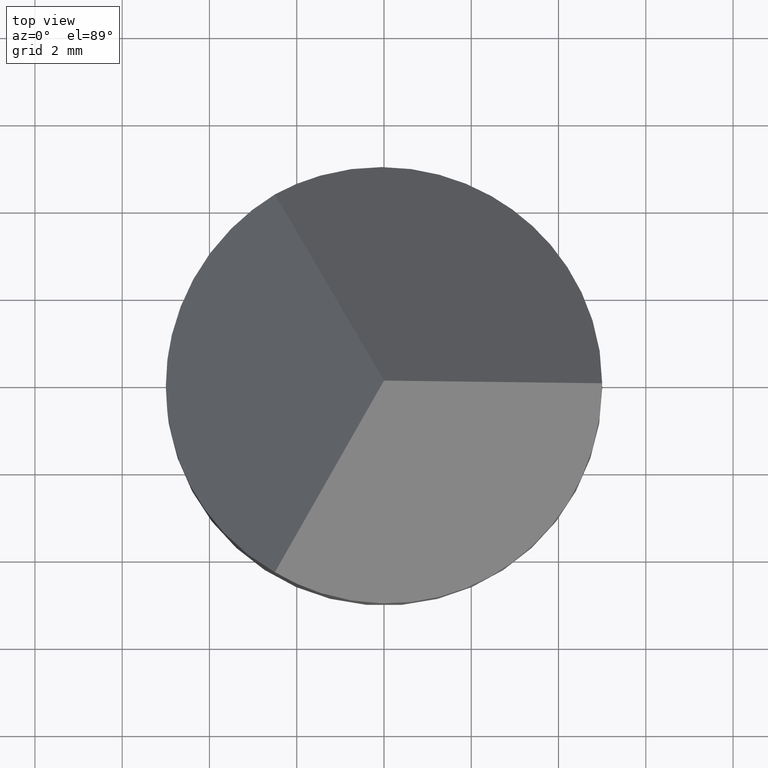
[diagram: clean part render]
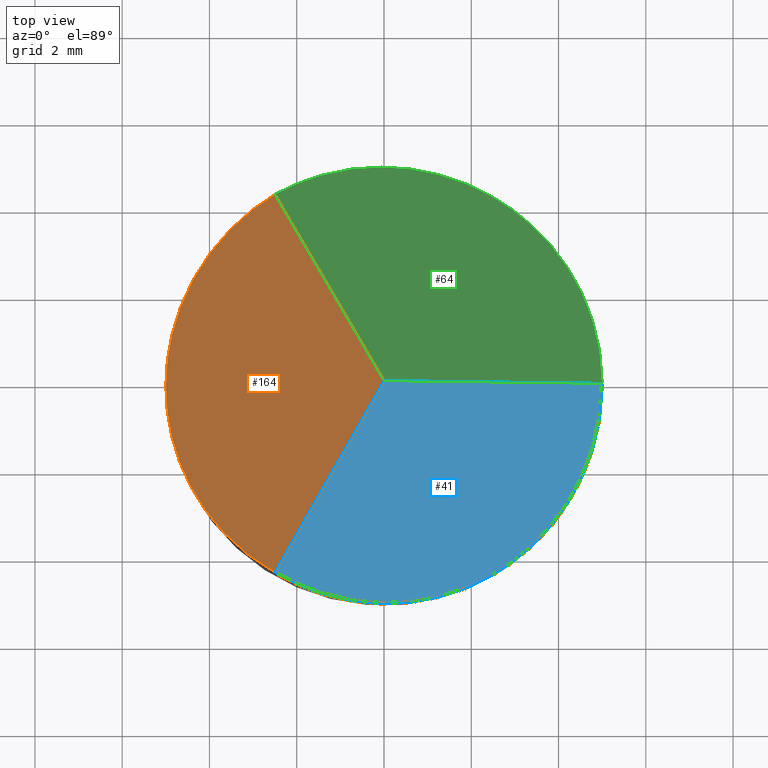
[diagram: same view with three faces highlighted in distinct colors, each labeled with its STEP entity id]
A machine part, top view with three faces highlighted in distinct colors.
Their STEP definitions:

[orange] entity #164 — the highlighted planar face has unit normal (0.8164, 0, -0.5774).
#4 = ORIENTED_EDGE ( 'NONE', *, *, #281, .T. ) ;
#7 = EDGE_CURVE ( 'NONE', #274, #170, #89, .T. ) ;
#11 = EDGE_LOOP ( 'NONE', ( #287, #4, #294, #28 ) ) ;
#12 = CARTESIAN_POINT ( 'NONE',  ( -4.084936490538905400, 3.415063509461090600, 3.224227220163949700 ) ) ;
#28 = ORIENTED_EDGE ( 'NONE', *, *, #302, .F. ) ;
#34 = DIRECTION ( 'NONE',  ( -0.5774302165486712200, 0.0000000000000000000, -0.8164400437365591000 ) ) ;
#54 = FACE_OUTER_BOUND ( 'NONE', #11, .T. ) ;
#85 = CARTESIAN_POINT ( 'NONE',  ( 0.0000000000000000000, -24.50000000000000000, 9.000000000000000000 ) ) ;
#87 = CARTESIAN_POINT ( 'NONE',  ( -8.673617379884035500E-016, -4.004885026051589500E-016, 9.000000000000001800 ) ) ;
#89 = LINE ( 'NONE', #115, #182 ) ;
#90 = CARTESIAN_POINT ( 'NONE',  ( -5.000000000000000000, 0.0000000000000000000, 1.930400762394619300 ) ) ;
#100 = CARTESIAN_POINT ( 'NONE',  ( -2.500000000000003100, 4.330127018922186500, 5.465200381197300700 ) ) ;
#104 = CARTESIAN_POINT ( 'NONE',  ( -2.500000000000003100, 4.330127018922186500, 5.465200381197300700 ) ) ;
#106 =( BOUNDED_CURVE ( )  B_SPLINE_CURVE ( 3, ( #133, #289, #238, #90 ),
 .UNSPECIFIED., .F., .T. ) 
 B_SPLINE_CURVE_WITH_KNOTS ( ( 4, 4 ),
 ( 5.235987755982989700, 6.283185307179586200 ),
 .UNSPECIFIED. ) 
 CURVE ( )  GEOMETRIC_REPRESENTATION_ITEM ( )  RATIONAL_B_SPLINE_CURVE ( ( 1.000000000000000000, 0.9106836025229592100, 0.9106836025229592100, 1.000000000000000000 ) ) 
 REPRESENTATION_ITEM ( '' )  );
#115 = CARTESIAN_POINT ( 'NONE',  ( 7.073520084914156000, -12.25169617543019700, 19.00139043989909000 ) ) ;
#120 = LINE ( 'NONE', #225, #194 ) ;
#133 = CARTESIAN_POINT ( 'NONE',  ( -2.500000000000008400, -4.330127018922198100, 5.465200381197298900 ) ) ;
#144 = EDGE_CURVE ( 'NONE', #154, #148, #106, .T. ) ;
#148 = VERTEX_POINT ( 'NONE', #207 ) ;
#154 = VERTEX_POINT ( 'NONE', #203 ) ;
#156 = DIRECTION ( 'NONE',  ( 0.8164400437365592100, 0.0000000000000000000, -0.5774302165486713300 ) ) ;
#164 = ADVANCED_FACE ( 'NONE', ( #54 ), #227, .F. ) ;
#170 = VERTEX_POINT ( 'NONE', #87 ) ;
#182 = VECTOR ( 'NONE', #292, 1000.000000000000100 ) ;
#194 = VECTOR ( 'NONE', #249, 999.9999999999998900 ) ;
#203 = CARTESIAN_POINT ( 'NONE',  ( -2.500000000000008400, -4.330127018922198100, 5.465200381197298900 ) ) ;
#207 = CARTESIAN_POINT ( 'NONE',  ( -5.000000000000000000, 0.0000000000000000000, 1.930400762394619300 ) ) ;
#211 = AXIS2_PLACEMENT_3D ( 'NONE', #85, #156, #34 ) ;
#214 =( BOUNDED_CURVE ( )  B_SPLINE_CURVE ( 3, ( #300, #251, #12, #104 ),
 .UNSPECIFIED., .F., .F. ) 
 B_SPLINE_CURVE_WITH_KNOTS ( ( 4, 4 ),
 ( 0.0000000000000000000, 1.047197551196596100 ),
 .UNSPECIFIED. ) 
 CURVE ( )  GEOMETRIC_REPRESENTATION_ITEM ( )  RATIONAL_B_SPLINE_CURVE ( ( 1.000000000000000000, 0.9106836025229593200, 0.9106836025229593200, 1.000000000000000000 ) ) 
 REPRESENTATION_ITEM ( '' )  );
#225 = CARTESIAN_POINT ( 'NONE',  ( -7.073520084914155100, -12.25169617543020500, -1.001390439899090700 ) ) ;
#227 = PLANE ( 'NONE',  #211 ) ;
#238 = CARTESIAN_POINT ( 'NONE',  ( -5.000000000000000000, -1.830127018922190500, 1.930400762394619100 ) ) ;
#249 = DIRECTION ( 'NONE',  ( 0.4082765531884057200, 0.7071557336614138200, 0.5772703218305810200 ) ) ;
#251 = CARTESIAN_POINT ( 'NONE',  ( -4.999999999999999100, 1.830127018922189900, 1.930400762394619100 ) ) ;
#274 = VERTEX_POINT ( 'NONE', #100 ) ;
#281 = EDGE_CURVE ( 'NONE', #154, #170, #120, .T. ) ;
#287 = ORIENTED_EDGE ( 'NONE', *, *, #144, .F. ) ;
#289 = CARTESIAN_POINT ( 'NONE',  ( -4.084936490538904500, -3.415063509461093300, 3.224227220163951900 ) ) ;
#292 = DIRECTION ( 'NONE',  ( 0.4082765531884057800, -0.7071557336614134900, 0.5772703218305811300 ) ) ;
#294 = ORIENTED_EDGE ( 'NONE', *, *, #7, .F. ) ;
#300 = CARTESIAN_POINT ( 'NONE',  ( -5.000000000000000000, 0.0000000000000000000, 1.930400762394619300 ) ) ;
#302 = EDGE_CURVE ( 'NONE', #148, #274, #214, .T. ) ;

[blue] entity #41 — the highlighted planar face has unit normal (-0.4082, 0.7071, -0.5774).
#1 = CARTESIAN_POINT ( 'NONE',  ( 11.69134295108994500, 6.749999999999978700, 9.000000000000000000 ) ) ;
#27 = DIRECTION ( 'NONE',  ( -0.8165531063768112200, -1.387778794088437300E-016, 0.5772703218305786900 ) ) ;
#41 = ADVANCED_FACE ( 'NONE', ( #141 ), #263, .F. ) ;
#46 = DIRECTION ( 'NONE',  ( -0.4082200218682780500, 0.7070578185427394100, -0.5774302165486712200 ) ) ;
#47 = CARTESIAN_POINT ( 'NONE',  ( 1.249999999999996000, -6.495190528383294500, 0.1630009529932650000 ) ) ;
#56 = EDGE_CURVE ( 'NONE', #269, #170, #298, .T. ) ;
#78 = EDGE_CURVE ( 'NONE', #269, #154, #282, .T. ) ;
#87 = CARTESIAN_POINT ( 'NONE',  ( -8.673617379884035500E-016, -4.004885026051589500E-016, 9.000000000000001800 ) ) ;
#120 = LINE ( 'NONE', #225, #194 ) ;
#141 = FACE_OUTER_BOUND ( 'NONE', #174, .T. ) ;
#154 = VERTEX_POINT ( 'NONE', #203 ) ;
#170 = VERTEX_POINT ( 'NONE', #87 ) ;
#174 = EDGE_LOOP ( 'NONE', ( #260, #245, #308 ) ) ;
#187 = CARTESIAN_POINT ( 'NONE',  ( 9.816313587227853100, 1.734723475976807100E-015, 2.060259694763890700 ) ) ;
#189 = CARTESIAN_POINT ( 'NONE',  ( 5.000000000000000900, -4.330127018922195400, 0.1630009529932771300 ) ) ;
#194 = VECTOR ( 'NONE', #249, 999.9999999999998900 ) ;
#203 = CARTESIAN_POINT ( 'NONE',  ( -2.500000000000008400, -4.330127018922198100, 5.465200381197298900 ) ) ;
#218 = CARTESIAN_POINT ( 'NONE',  ( -2.500000000000008400, -4.330127018922198100, 5.465200381197298900 ) ) ;
#225 = CARTESIAN_POINT ( 'NONE',  ( -7.073520084914155100, -12.25169617543020500, -1.001390439899090700 ) ) ;
#240 = CARTESIAN_POINT ( 'NONE',  ( 5.000000000000004400, 9.161633835790454200E-016, 5.465200381197320200 ) ) ;
#243 = AXIS2_PLACEMENT_3D ( 'NONE', #1, #46, #290 ) ;
#245 = ORIENTED_EDGE ( 'NONE', *, *, #281, .F. ) ;
#249 = DIRECTION ( 'NONE',  ( 0.4082765531884057200, 0.7071557336614138200, 0.5772703218305810200 ) ) ;
#254 = VECTOR ( 'NONE', #27, 1000.000000000000200 ) ;
#260 = ORIENTED_EDGE ( 'NONE', *, *, #56, .T. ) ;
#263 = PLANE ( 'NONE',  #243 ) ;
#269 = VERTEX_POINT ( 'NONE', #305 ) ;
#281 = EDGE_CURVE ( 'NONE', #154, #170, #120, .T. ) ;
#282 =( BOUNDED_CURVE ( )  B_SPLINE_CURVE ( 3, ( #240, #189, #47, #218 ),
 .UNSPECIFIED., .F., .F. ) 
 B_SPLINE_CURVE_WITH_KNOTS ( ( 4, 4 ),
 ( 5.235987755982986200, 7.330382858376182800 ),
 .UNSPECIFIED. ) 
 CURVE ( )  GEOMETRIC_REPRESENTATION_ITEM ( )  RATIONAL_B_SPLINE_CURVE ( ( 1.000000000000000000, 0.6666666666666663000, 0.6666666666666663000, 1.000000000000000000 ) ) 
 REPRESENTATION_ITEM ( '' )  );
#290 = DIRECTION ( 'NONE',  ( 0.0000000000000000000, 0.6325343505460013800, 0.7745323075116674600 ) ) ;
#298 = LINE ( 'NONE', #187, #254 ) ;
#305 = CARTESIAN_POINT ( 'NONE',  ( 5.000000000000004400, 9.161633835790454200E-016, 5.465200381197320200 ) ) ;
#308 = ORIENTED_EDGE ( 'NONE', *, *, #78, .F. ) ;

[green] entity #64 — the highlighted planar face has unit normal (0.4082, 0.7071, 0.5774).
#7 = EDGE_CURVE ( 'NONE', #274, #170, #89, .T. ) ;
#8 = ORIENTED_EDGE ( 'NONE', *, *, #180, .T. ) ;
#27 = DIRECTION ( 'NONE',  ( -0.8165531063768112200, -1.387778794088437300E-016, 0.5772703218305786900 ) ) ;
#38 = CARTESIAN_POINT ( 'NONE',  ( 5.000000000000004400, 9.161633835790454200E-016, 5.465200381197320200 ) ) ;
#56 = EDGE_CURVE ( 'NONE', #269, #170, #298, .T. ) ;
#57 = CARTESIAN_POINT ( 'NONE',  ( -2.500000000000003100, 4.330127018922186500, 5.465200381197300700 ) ) ;
#64 = ADVANCED_FACE ( 'NONE', ( #80 ), #190, .T. ) ;
#69 = DIRECTION ( 'NONE',  ( 0.4082200218682777700, 0.7070578185427395200, 0.5774302165486711000 ) ) ;
#80 = FACE_OUTER_BOUND ( 'NONE', #215, .T. ) ;
#87 = CARTESIAN_POINT ( 'NONE',  ( -8.673617379884035500E-016, -4.004885026051589500E-016, 9.000000000000001800 ) ) ;
#89 = LINE ( 'NONE', #115, #182 ) ;
#97 = ORIENTED_EDGE ( 'NONE', *, *, #7, .T. ) ;
#100 = CARTESIAN_POINT ( 'NONE',  ( -2.500000000000003100, 4.330127018922186500, 5.465200381197300700 ) ) ;
#115 = CARTESIAN_POINT ( 'NONE',  ( 7.073520084914156000, -12.25169617543019700, 19.00139043989909000 ) ) ;
#167 = CARTESIAN_POINT ( 'NONE',  ( 14.72243186433548900, -8.499999999999966200, 9.000000000000000000 ) ) ;
#168 =( BOUNDED_CURVE ( )  B_SPLINE_CURVE ( 3, ( #38, #279, #200, #57 ),
 .UNSPECIFIED., .F., .F. ) 
 B_SPLINE_CURVE_WITH_KNOTS ( ( 4, 4 ),
 ( 5.235987755982986200, 7.330382858376182800 ),
 .UNSPECIFIED. ) 
 CURVE ( )  GEOMETRIC_REPRESENTATION_ITEM ( )  RATIONAL_B_SPLINE_CURVE ( ( 1.000000000000000000, 0.6666666666666663000, 0.6666666666666663000, 1.000000000000000000 ) ) 
 REPRESENTATION_ITEM ( '' )  );
#170 = VERTEX_POINT ( 'NONE', #87 ) ;
#180 = EDGE_CURVE ( 'NONE', #269, #274, #168, .T. ) ;
#182 = VECTOR ( 'NONE', #292, 1000.000000000000100 ) ;
#187 = CARTESIAN_POINT ( 'NONE',  ( 9.816313587227853100, 1.734723475976807100E-015, 2.060259694763890700 ) ) ;
#190 = PLANE ( 'NONE',  #267 ) ;
#200 = CARTESIAN_POINT ( 'NONE',  ( 1.249999999999993800, 6.495190528383295400, 0.1630009529932606400 ) ) ;
#201 = ORIENTED_EDGE ( 'NONE', *, *, #56, .F. ) ;
#215 = EDGE_LOOP ( 'NONE', ( #201, #8, #97 ) ) ;
#254 = VECTOR ( 'NONE', #27, 1000.000000000000200 ) ;
#266 = DIRECTION ( 'NONE',  ( 0.0000000000000000000, -0.6325343505460012700, 0.7745323075116675700 ) ) ;
#267 = AXIS2_PLACEMENT_3D ( 'NONE', #167, #69, #266 ) ;
#269 = VERTEX_POINT ( 'NONE', #305 ) ;
#274 = VERTEX_POINT ( 'NONE', #100 ) ;
#279 = CARTESIAN_POINT ( 'NONE',  ( 5.000000000000000900, 4.330127018922196300, 0.1630009529932728000 ) ) ;
#292 = DIRECTION ( 'NONE',  ( 0.4082765531884057800, -0.7071557336614134900, 0.5772703218305811300 ) ) ;
#298 = LINE ( 'NONE', #187, #254 ) ;
#305 = CARTESIAN_POINT ( 'NONE',  ( 5.000000000000004400, 9.161633835790454200E-016, 5.465200381197320200 ) ) ;